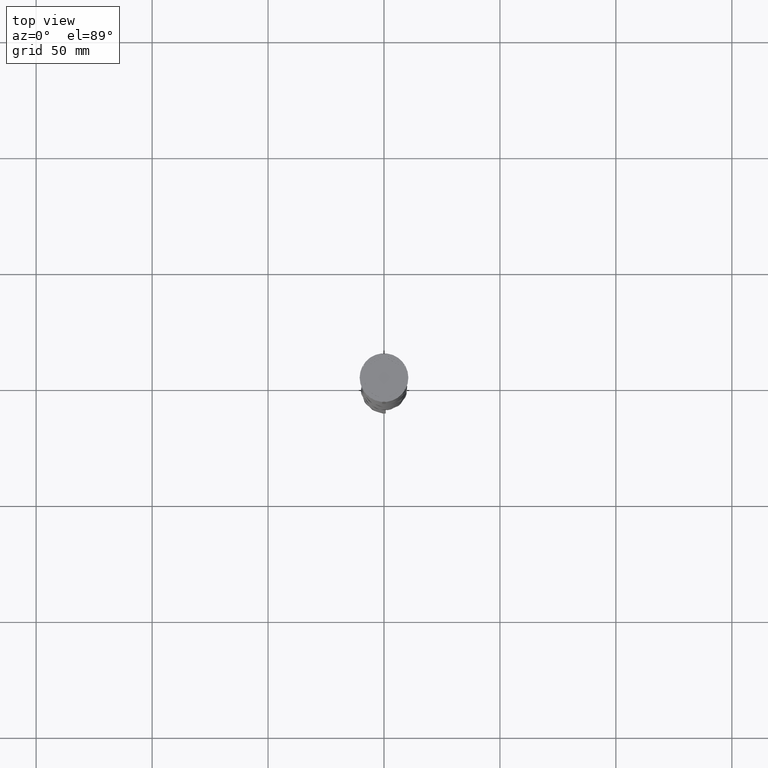
[diagram: clean part render]
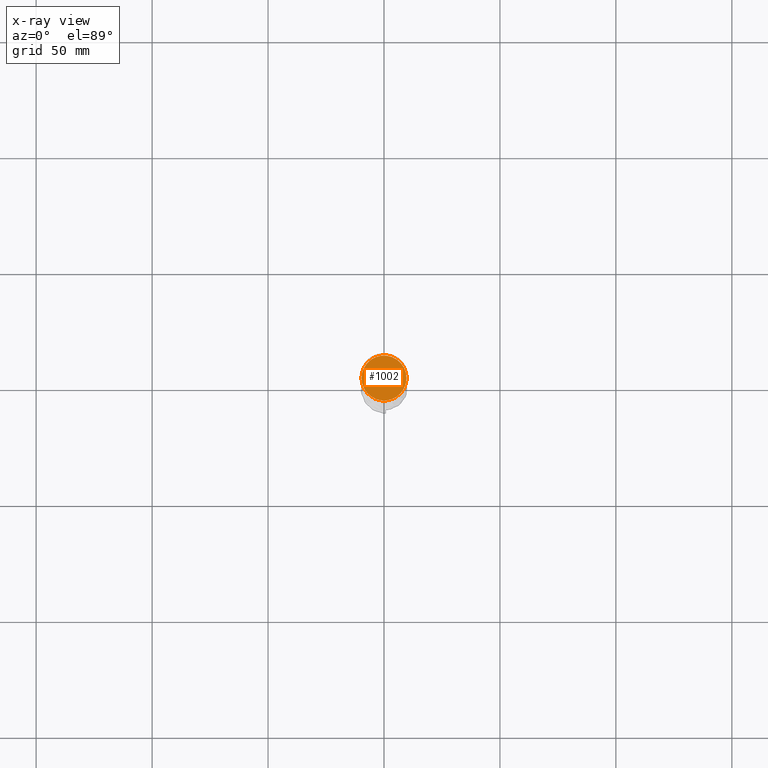
[diagram: x-ray — body ghosted, one internal face saturated and labeled with its STEP entity id]
A machine part, top view, then the same camera in x-ray: the body is ghosted and one INTERNAL B-rep face — a face not visible from any outside direction — is saturated and labeled: STEP entity #1002.
In plain terms, the highlighted planar face has unit normal (0, 0, -1).
Its self-contained STEP definition (entity closure, byte-faithful):
#211 = CARTESIAN_POINT ( 'NONE',  ( 0.000000000000000000, 0.000000000000000000, -12.00000000000000000 ) ) ;
#343 = CARTESIAN_POINT ( 'NONE',  ( 0.000000000000000000, 0.000000000000000000, -12.00000000000000000 ) ) ;
#419 = CARTESIAN_POINT ( 'NONE',  ( 0.000000000000000000, 0.000000000000000000, -12.00000000000000000 ) ) ;
#548 = ORIENTED_EDGE ( 'NONE', *, *, #1534, .T. ) ;
#590 = CIRCLE ( 'NONE', #2267, 9.700000000000002842 ) ;
#614 = FACE_OUTER_BOUND ( 'NONE', #2264, .T. ) ;
#669 = AXIS2_PLACEMENT_3D ( 'NONE', #419, #1756, #2748 ) ;
#751 = DIRECTION ( 'NONE',  ( 0.000000000000000000, 0.000000000000000000, -1.000000000000000000 ) ) ;
#1002 = ADVANCED_FACE ( 'NONE', ( #614 ), #1604, .F. ) ;
#1108 = ORIENTED_EDGE ( 'NONE', *, *, #2879, .T. ) ;
#1315 = CARTESIAN_POINT ( 'NONE',  ( 9.700000000000002842, 1.206277097160143024E-15, -12.00000000000000000 ) ) ;
#1534 = EDGE_CURVE ( 'NONE', #2586, #2371, #590, .T. ) ;
#1604 = PLANE ( 'NONE',  #1707 ) ;
#1707 = AXIS2_PLACEMENT_3D ( 'NONE', #211, #751, #2082 ) ;
#1756 = DIRECTION ( 'NONE',  ( -0.000000000000000000, -0.000000000000000000, 1.000000000000000000 ) ) ;
#2082 = DIRECTION ( 'NONE',  ( -1.000000000000000000, 0.000000000000000000, -0.000000000000000000 ) ) ;
#2264 = EDGE_LOOP ( 'NONE', ( #1108, #548 ) ) ;
#2267 = AXIS2_PLACEMENT_3D ( 'NONE', #343, #3372, #2447 ) ;
#2371 = VERTEX_POINT ( 'NONE', #3546 ) ;
#2447 = DIRECTION ( 'NONE',  ( -1.000000000000000000, 0.000000000000000000, 0.000000000000000000 ) ) ;
#2586 = VERTEX_POINT ( 'NONE', #1315 ) ;
#2748 = DIRECTION ( 'NONE',  ( -1.000000000000000000, 0.000000000000000000, 0.000000000000000000 ) ) ;
#2879 = EDGE_CURVE ( 'NONE', #2371, #2586, #3780, .T. ) ;
#3372 = DIRECTION ( 'NONE',  ( -0.000000000000000000, -0.000000000000000000, 1.000000000000000000 ) ) ;
#3546 = CARTESIAN_POINT ( 'NONE',  ( -9.700000000000002842, 0.000000000000000000, -12.00000000000000000 ) ) ;
#3780 = CIRCLE ( 'NONE', #669, 9.700000000000002842 ) ;